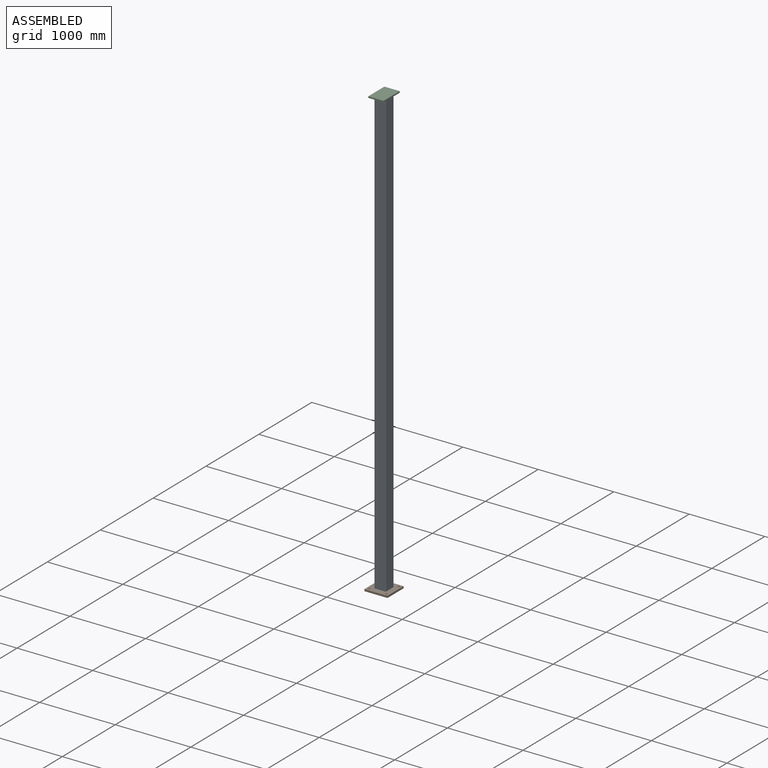
[diagram: assembled view]
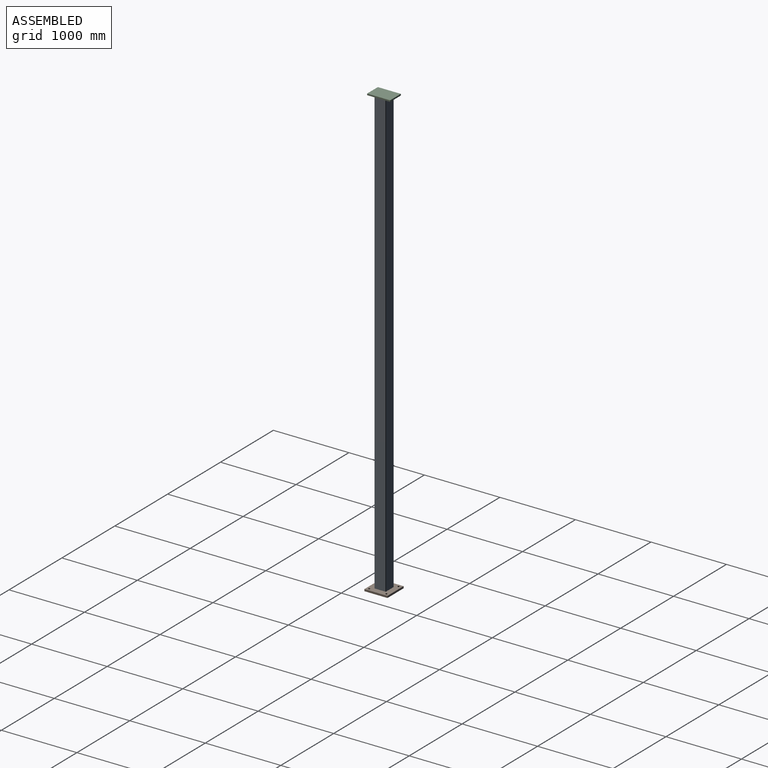
[diagram: assembled view, second angle]
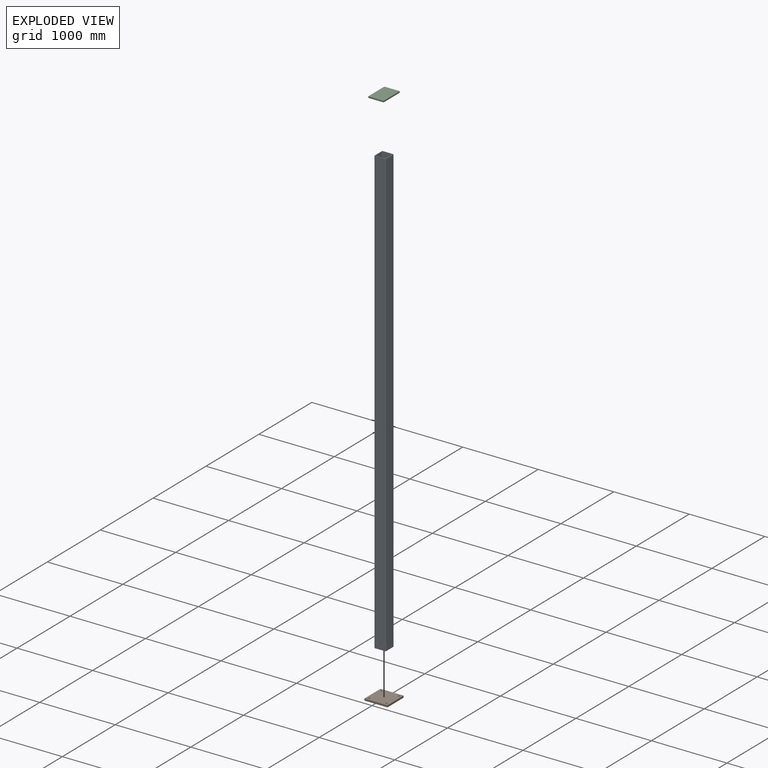
[diagram: exploded view]
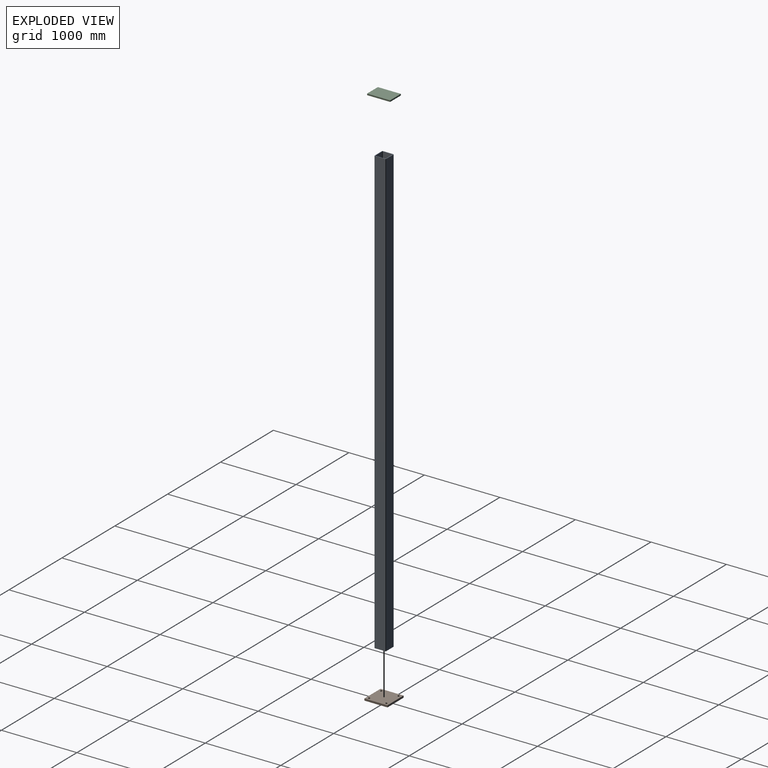
[diagram: exploded view, second angle]
ASSEMBLY  parts=3 mates=2
PART A: 18 faces, bbox 152.4x152.4x5892.8 mm
  f0: plane 5892.8x139.7mm, normal (-1,0,0), area 823224.2mm2, adj f1,f7,f8,f9
  f1: cylinder r=6.35mm len=5892.8mm, axis (0,0,-1), area 58778.1mm2, adj f0,f2,f8,f9
  f2: plane 5892.8x139.7mm, normal (0,-1,0), area 823224.2mm2, adj f1,f3,f8,f9
  f3: cylinder r=6.35mm len=5892.8mm, axis (0,0,-1), area 58778.1mm2, adj f2,f4,f8,f9
  f4: plane 5892.8x139.7mm, normal (1,0,0), area 823224.2mm2, adj f3,f5,f8,f9
  f5: cylinder r=6.35mm len=5892.8mm, axis (0,0,-1), area 58778.1mm2, adj f4,f6,f8,f9
  f6: plane 5892.8x139.7mm, normal (0,1,0), area 823224.2mm2, adj f5,f7,f8,f9
  f7: cylinder r=6.35mm len=5892.8mm, axis (0,0,-1), area 58778.1mm2, adj f0,f6,f8,f9
  f8: plane 152.4x152.4mm, normal (0,0,1), area 3701.9mm2, adj f0,f1,f2,f3,f4,f5,f6,f7
  f9: plane 152.4x152.4mm, normal (0,0,-1), area 3701.9mm2, adj f0,f1,f2,f3,f4,f5,f6,f7
  f10: plane 5892.8x127.14mm, normal (1,0,0), area 749199.5mm2, adj f8,f9,f11,f17
  f11: cylinder r=6.35mm len=5892.8mm, axis (0,0,1), area 58778.1mm2, adj f8,f9,f10,f12
  f12: plane 5892.8x126.92mm, normal (0,1,0), area 747898.8mm2, adj f8,f9,f11,f13
  f13: cylinder r=6.35mm len=5892.8mm, axis (0,0,1), area 58778.1mm2, adj f8,f9,f12,f14
  f14: plane 5892.8x127.14mm, normal (-1,0,0), area 749199.5mm2, adj f8,f9,f13,f15
  f15: cylinder r=6.35mm len=5892.8mm, axis (0,0,1), area 58778.1mm2, adj f8,f9,f14,f16
  f16: plane 5892.8x126.92mm, normal (0,-1,0), area 747898.8mm2, adj f8,f9,f15,f17
  f17: cylinder r=6.35mm len=5892.8mm, axis (0,0,1), area 58778.1mm2, adj f8,f9,f10,f16
PART B: 10 faces, bbox 304.8x304.8x25.4 mm
  f0: plane 304.8x25.4mm, normal (0,-1,0), area 7741.9mm2, adj f1,f3,f4,f5
  f1: plane 304.8x25.4mm, normal (1,0,0), area 7741.9mm2, adj f0,f2,f4,f5
  f2: plane 304.8x25.4mm, normal (0,1,0), area 7741.9mm2, adj f1,f3,f4,f5
  f3: plane 304.8x25.4mm, normal (-1,0,0), area 7741.9mm2, adj f0,f2,f4,f5
  f4: plane 304.8x304.8mm, normal (0,0,1), area 90613.9mm2, adj f0,f1,f2,f3,f6,f7,f8,f9
  f5: plane 304.8x304.8mm, normal (0,0,-1), area 90613.9mm2, adj f0,f1,f2,f3,f6,f7,f8,f9
  f6: cylinder r=13.49mm len=26.99mm, axis (0,0,1), area 2153.5mm2, adj f4,f5
  f7: cylinder r=13.49mm len=26.99mm, axis (0,0,1), area 2153.5mm2, adj f4,f5
  f8: cylinder r=13.5mm len=27mm, axis (0,0,1), area 2154.5mm2, adj f4,f5
  f9: cylinder r=13.5mm len=27mm, axis (0,0,1), area 2154.5mm2, adj f4,f5
PART C: 6 faces, bbox 203.2x304.8x19.1 mm
  f0: plane 203.2x19.05mm, normal (0,-1,0), area 3871mm2, adj f1,f3,f4,f5
  f1: plane 304.8x19.05mm, normal (1,0,0), area 5806.4mm2, adj f0,f2,f4,f5
  f2: plane 203.2x19.05mm, normal (0,1,0), area 3871mm2, adj f1,f3,f4,f5
  f3: plane 304.8x19.05mm, normal (-1,0,0), area 5806.4mm2, adj f0,f2,f4,f5
  f4: plane 304.8x203.2mm, normal (0,0,1), area 61935.4mm2, adj f0,f1,f2,f3
  f5: plane 304.8x203.2mm, normal (0,0,-1), area 61935.4mm2, adj f0,f1,f2,f3
PLACE A t=(122.1,52.9,-5929.52)mm
PLACE B t=(122.4,52.53,-5954.92)mm
PLACE C t=(122.4,52.53,-36.72)mm
MATE fastened B.f4 <-> A.f9  axis (0,0,1) through (122.4,52.53,-5929.52)mm
MATE fastened A.f8 <-> C.f5  axis (0,0,1) through (122.4,52.53,-36.72)mm
